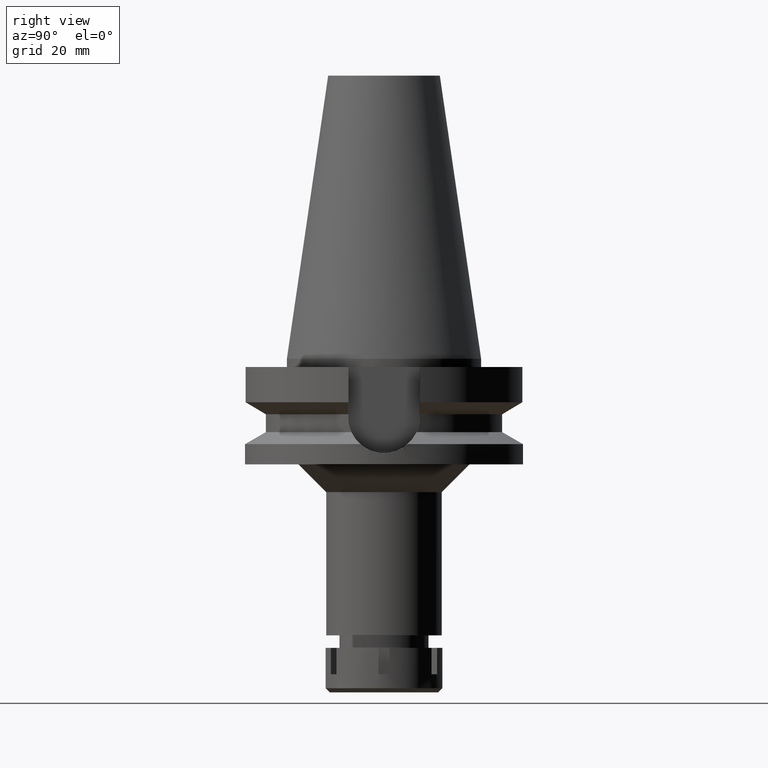
[diagram: clean part render]
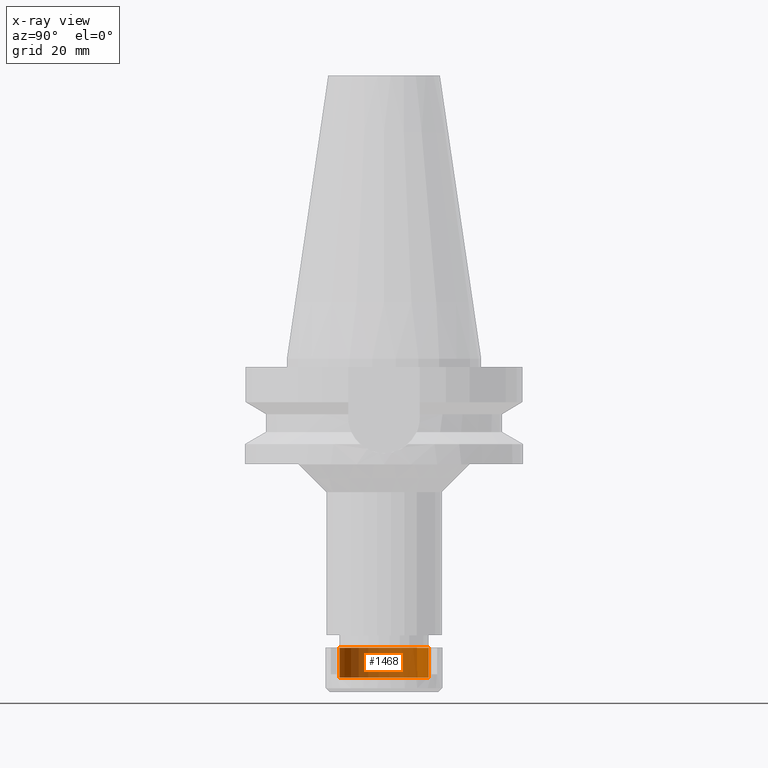
[diagram: x-ray — body ghosted, one internal face saturated and labeled with its STEP entity id]
A machine part, right view, then the same camera in x-ray: the body is ghosted and one INTERNAL B-rep face — a face not visible from any outside direction — is saturated and labeled: STEP entity #1468.
In plain terms, the highlighted cylindrical surface (partial cylindrical patch) has radius 16 mm, axis along (0, 0, -1).
Its self-contained STEP definition (entity closure, byte-faithful):
#30 = CARTESIAN_POINT ( 'NONE',  ( 0.0000000000000000000, 0.0000000000000000000, 0.0000000000000000000 ) ) ;
#53 = VERTEX_POINT ( 'NONE', #2387 ) ;
#117 = VERTEX_POINT ( 'NONE', #1871 ) ;
#265 = VERTEX_POINT ( 'NONE', #1008 ) ;
#531 = FACE_OUTER_BOUND ( 'NONE', #1613, .T. ) ;
#669 = CIRCLE ( 'NONE', #1266, 16.00000000000000000 ) ;
#921 = EDGE_CURVE ( 'NONE', #53, #265, #3574, .T. ) ;
#1008 = CARTESIAN_POINT ( 'NONE',  ( 0.0000000000000000000, 16.00000000000000000, -10.80000000000000071 ) ) ;
#1189 = EDGE_CURVE ( 'NONE', #53, #117, #2383, .T. ) ;
#1217 = VECTOR ( 'NONE', #2007, 1000.000000000000000 ) ;
#1266 = AXIS2_PLACEMENT_3D ( 'NONE', #1715, #2211, #2795 ) ;
#1444 = DIRECTION ( 'NONE',  ( 0.0000000000000000000, 0.0000000000000000000, -1.000000000000000000 ) ) ;
#1468 = ADVANCED_FACE ( 'NONE', ( #531 ), #2564, .F. ) ;
#1487 = EDGE_CURVE ( 'NONE', #1538, #117, #669, .T. ) ;
#1497 = ORIENTED_EDGE ( 'NONE', *, *, #921, .T. ) ;
#1538 = VERTEX_POINT ( 'NONE', #2245 ) ;
#1558 = VECTOR ( 'NONE', #3451, 1000.000000000000000 ) ;
#1613 = EDGE_LOOP ( 'NONE', ( #3435, #1893, #1497, #2082 ) ) ;
#1644 = DIRECTION ( 'NONE',  ( 0.0000000000000000000, -1.000000000000000000, 0.0000000000000000000 ) ) ;
#1715 = CARTESIAN_POINT ( 'NONE',  ( 0.0000000000000000000, 0.0000000000000000000, 0.0000000000000000000 ) ) ;
#1871 = CARTESIAN_POINT ( 'NONE',  ( 0.0000000000000000000, -16.00000000000000000, 0.0000000000000000000 ) ) ;
#1893 = ORIENTED_EDGE ( 'NONE', *, *, #1189, .F. ) ;
#1940 = DIRECTION ( 'NONE',  ( 0.0000000000000000000, -1.000000000000000000, 0.0000000000000000000 ) ) ;
#2007 = DIRECTION ( 'NONE',  ( 0.0000000000000000000, 0.0000000000000000000, 1.000000000000000000 ) ) ;
#2011 = DIRECTION ( 'NONE',  ( 0.0000000000000000000, 0.0000000000000000000, -1.000000000000000000 ) ) ;
#2061 = CARTESIAN_POINT ( 'NONE',  ( 0.0000000000000000000, 16.00000000000000000, -10.80000000000000071 ) ) ;
#2082 = ORIENTED_EDGE ( 'NONE', *, *, #2707, .T. ) ;
#2211 = DIRECTION ( 'NONE',  ( 0.0000000000000000000, 0.0000000000000000000, 1.000000000000000000 ) ) ;
#2245 = CARTESIAN_POINT ( 'NONE',  ( 0.0000000000000000000, 16.00000000000000000, 0.0000000000000000000 ) ) ;
#2323 = LINE ( 'NONE', #2061, #1217 ) ;
#2383 = LINE ( 'NONE', #2624, #1558 ) ;
#2387 = CARTESIAN_POINT ( 'NONE',  ( 0.0000000000000000000, -16.00000000000000000, -10.80000000000000071 ) ) ;
#2537 = CARTESIAN_POINT ( 'NONE',  ( 0.0000000000000000000, 0.0000000000000000000, -10.80000000000000071 ) ) ;
#2564 = CYLINDRICAL_SURFACE ( 'NONE', #3637, 16.00000000000000000 ) ;
#2624 = CARTESIAN_POINT ( 'NONE',  ( 0.0000000000000000000, -16.00000000000000000, -10.80000000000000071 ) ) ;
#2671 = AXIS2_PLACEMENT_3D ( 'NONE', #2537, #2011, #1940 ) ;
#2707 = EDGE_CURVE ( 'NONE', #265, #1538, #2323, .T. ) ;
#2795 = DIRECTION ( 'NONE',  ( 0.0000000000000000000, 1.000000000000000000, 0.0000000000000000000 ) ) ;
#3435 = ORIENTED_EDGE ( 'NONE', *, *, #1487, .T. ) ;
#3451 = DIRECTION ( 'NONE',  ( 0.0000000000000000000, 0.0000000000000000000, 1.000000000000000000 ) ) ;
#3574 = CIRCLE ( 'NONE', #2671, 16.00000000000000000 ) ;
#3637 = AXIS2_PLACEMENT_3D ( 'NONE', #30, #1444, #1644 ) ;